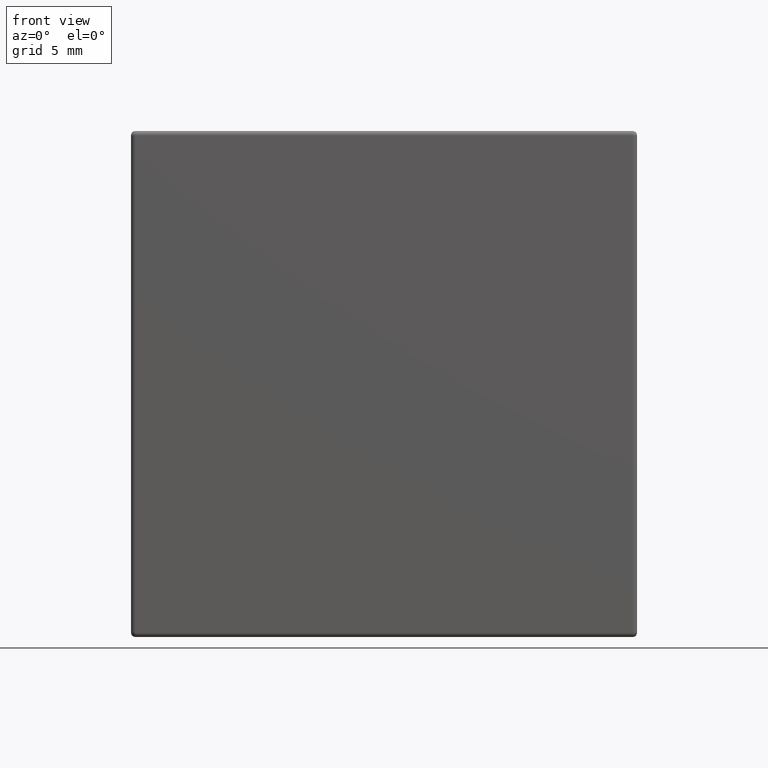
[diagram: clean part render]
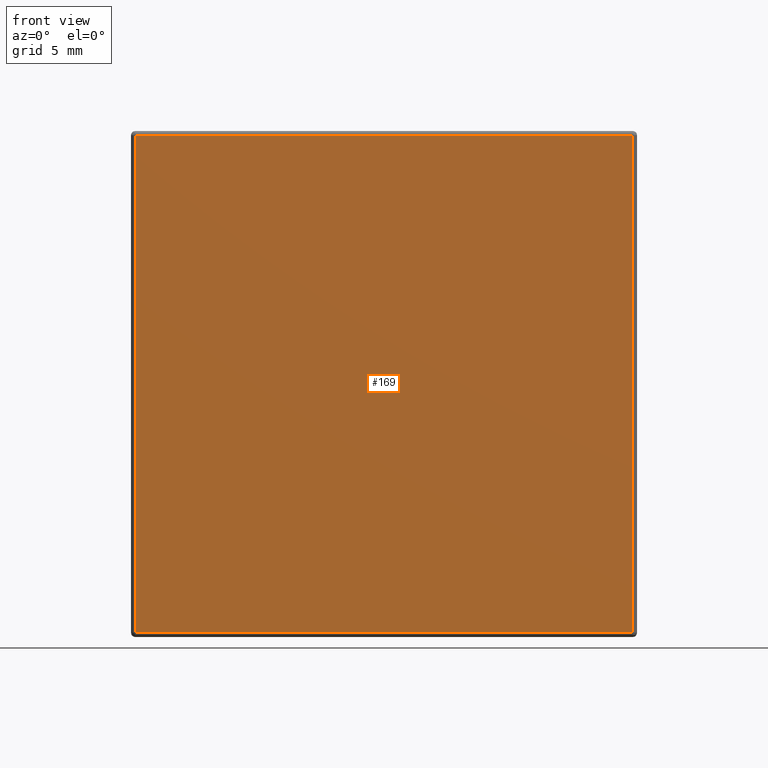
[diagram: same view with one face highlighted and labeled with its STEP entity id]
A machine part, front view. The second image highlights one B-rep face of the part: STEP entity #169.
In plain terms, the highlighted planar face has unit normal (0, 1, 0).
Its self-contained STEP definition (entity closure, byte-faithful):
#1 = DIRECTION ( 'NONE',  ( -0.0000000000000000000, -0.0000000000000000000, -1.000000000000000000 ) ) ;
#2 = CARTESIAN_POINT ( 'NONE',  ( -14.75000000009617400, 0.0000000000000000000, 0.0000000000000000000 ) ) ;
#42 = CARTESIAN_POINT ( 'NONE',  ( 14.75000000004808600, -1.084202172485504400E-016, 14.75000000004808600 ) ) ;
#54 = CARTESIAN_POINT ( 'NONE',  ( 14.75000000003606400, -1.084202172485504400E-016, -14.75000000004808800 ) ) ;
#56 = CARTESIAN_POINT ( 'NONE',  ( -14.75000000004808600, -1.084202172485504400E-016, 14.75000000004808600 ) ) ;
#78 = CARTESIAN_POINT ( 'NONE',  ( -14.75000000004808600, -1.084202172485504400E-016, -14.75000000004808600 ) ) ;
#169 = ADVANCED_FACE ( 'NONE', ( #635 ), #330, .F. ) ;
#172 = EDGE_CURVE ( 'NONE', #484, #521, #639, .T. ) ;
#176 = EDGE_CURVE ( 'NONE', #521, #482, #645, .T. ) ;
#177 = EDGE_CURVE ( 'NONE', #482, #453, #654, .T. ) ;
#179 = EDGE_CURVE ( 'NONE', #453, #484, #657, .T. ) ;
#204 = ORIENTED_EDGE ( 'NONE', *, *, #172, .T. ) ;
#245 = ORIENTED_EDGE ( 'NONE', *, *, #179, .T. ) ;
#247 = ORIENTED_EDGE ( 'NONE', *, *, #177, .T. ) ;
#265 = EDGE_LOOP ( 'NONE', ( #204, #304, #247, #245 ) ) ;
#304 = ORIENTED_EDGE ( 'NONE', *, *, #176, .T. ) ;
#330 = PLANE ( 'NONE',  #546 ) ;
#331 = CARTESIAN_POINT ( 'NONE',  ( -14.75000000000000200, 0.0000000000000000000, -14.75000000000000200 ) ) ;
#333 = DIRECTION ( 'NONE',  ( 0.0000000000000000000, 1.000000000000000000, 0.0000000000000000000 ) ) ;
#334 = DIRECTION ( 'NONE',  ( 0.0000000000000000000, 0.0000000000000000000, 1.000000000000000000 ) ) ;
#350 = CARTESIAN_POINT ( 'NONE',  ( 0.0000000000000000000, 0.0000000000000000000, -14.75000000009617400 ) ) ;
#453 = VERTEX_POINT ( 'NONE', #42 ) ;
#482 = VERTEX_POINT ( 'NONE', #54 ) ;
#484 = VERTEX_POINT ( 'NONE', #56 ) ;
#521 = VERTEX_POINT ( 'NONE', #78 ) ;
#522 = DIRECTION ( 'NONE',  ( -0.0000000000000000000, -0.0000000000000000000, 1.000000000000000000 ) ) ;
#546 = AXIS2_PLACEMENT_3D ( 'NONE', #331, #333, #334 ) ;
#635 = FACE_OUTER_BOUND ( 'NONE', #265, .T. ) ;
#639 = LINE ( 'NONE', #2, #640 ) ;
#640 = VECTOR ( 'NONE', #1, 1000.000000000000000 ) ;
#645 = LINE ( 'NONE', #350, #651 ) ;
#651 = VECTOR ( 'NONE', #927, 1000.000000000000000 ) ;
#654 = LINE ( 'NONE', #926, #655 ) ;
#655 = VECTOR ( 'NONE', #522, 1000.000000000000000 ) ;
#657 = LINE ( 'NONE', #778, #660 ) ;
#660 = VECTOR ( 'NONE', #779, 1000.000000000000000 ) ;
#778 = CARTESIAN_POINT ( 'NONE',  ( 0.0000000000000000000, 0.0000000000000000000, 14.75000000009617400 ) ) ;
#779 = DIRECTION ( 'NONE',  ( -1.000000000000000000, -0.0000000000000000000, -0.0000000000000000000 ) ) ;
#926 = CARTESIAN_POINT ( 'NONE',  ( 14.75000000009617400, 0.0000000000000000000, 0.0000000000000000000 ) ) ;
#927 = DIRECTION ( 'NONE',  ( 1.000000000000000000, -0.0000000000000000000, -0.0000000000000000000 ) ) ;